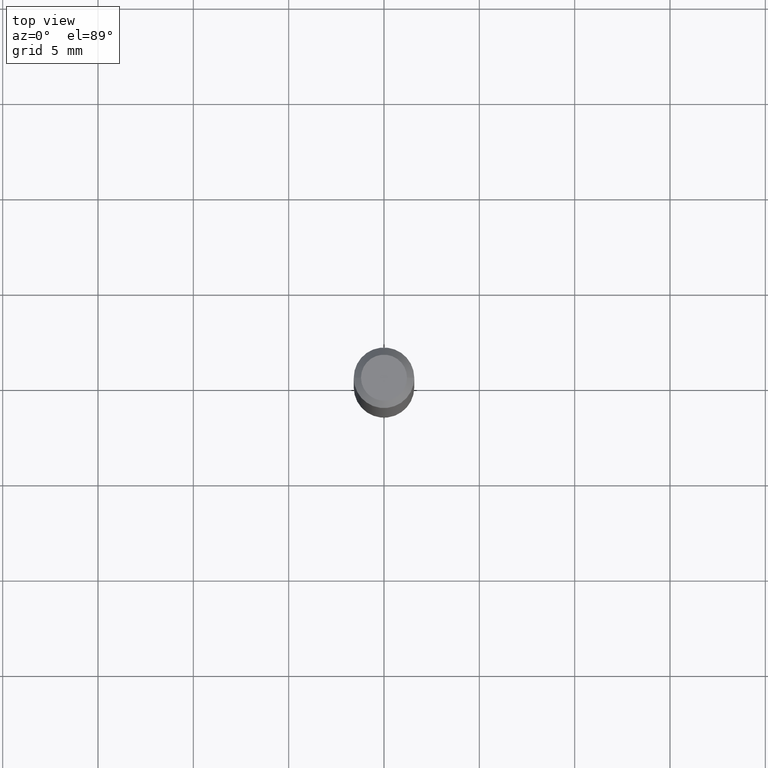
[diagram: clean part render]
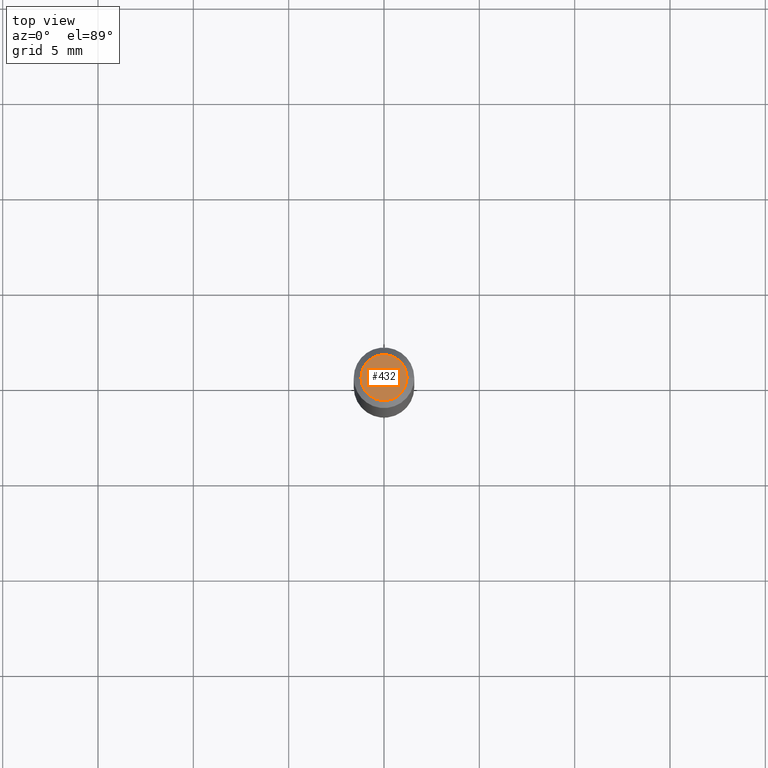
[diagram: same view with one face highlighted and labeled with its STEP entity id]
A machine part, top view. The second image highlights one B-rep face of the part: STEP entity #432.
In plain terms, the highlighted planar face has unit normal (0, -0, -1).
Its self-contained STEP definition (entity closure, byte-faithful):
#4 = DIRECTION ( 'NONE',  ( 1.000000000000000000, -6.982962677686266711E-15, 4.852736867747365086E-29 ) ) ;
#6 = DIRECTION ( 'NONE',  ( -2.445468806185136597E-29, 3.491481338843145583E-15, 1.000000000000000000 ) ) ;
#30 = VERTEX_POINT ( 'NONE', #50 ) ;
#50 = CARTESIAN_POINT ( 'NONE',  ( -0.04750000000000000749, 3.578768372314221353E-16, 2.731847993664239060E-16 ) ) ;
#53 = DIRECTION ( 'NONE',  ( 1.000000000000000000, -6.982962677686266711E-15, 4.852736867747365086E-29 ) ) ;
#93 = ORIENTED_EDGE ( 'NONE', *, *, #323, .T. ) ;
#121 = CIRCLE ( 'NONE', #275, 0.04750000000000000749 ) ;
#130 = AXIS2_PLACEMENT_3D ( 'NONE', #240, #211, #4 ) ;
#165 = DIRECTION ( 'NONE',  ( 2.438088387897960049E-29, -3.491481338843145188E-15, -1.000000000000000000 ) ) ;
#205 = PLANE ( 'NONE',  #330 ) ;
#211 = DIRECTION ( 'NONE',  ( -2.445468806185136597E-29, 3.491481338843145583E-15, 1.000000000000000000 ) ) ;
#240 = CARTESIAN_POINT ( 'NONE',  ( -6.680649051745406845E-45, 9.538196290434862081E-31, 2.731847993664263218E-16 ) ) ;
#247 = CIRCLE ( 'NONE', #130, 0.04750000000000000749 ) ;
#275 = AXIS2_PLACEMENT_3D ( 'NONE', #491, #6, #53 ) ;
#281 = CARTESIAN_POINT ( 'NONE',  ( 0.04750000000000000749, -4.035134999187568762E-16, 2.731847993664288856E-16 ) ) ;
#311 = EDGE_LOOP ( 'NONE', ( #416, #93 ) ) ;
#323 = EDGE_CURVE ( 'NONE', #333, #30, #121, .T. ) ;
#330 = AXIS2_PLACEMENT_3D ( 'NONE', #357, #165, #449 ) ;
#333 = VERTEX_POINT ( 'NONE', #281 ) ;
#349 = EDGE_CURVE ( 'NONE', #30, #333, #247, .T. ) ;
#357 = CARTESIAN_POINT ( 'NONE',  ( 3.316907271900976589E-16, 0.04750000000000000749, -2.925296391183627249E-17 ) ) ;
#394 = FACE_OUTER_BOUND ( 'NONE', #311, .T. ) ;
#416 = ORIENTED_EDGE ( 'NONE', *, *, #349, .T. ) ;
#432 = ADVANCED_FACE ( 'NONE', ( #394 ), #205, .F. ) ;
#449 = DIRECTION ( 'NONE',  ( -1.000000000000000000, 6.982962677686265922E-15, -4.876176775795935793E-29 ) ) ;
#491 = CARTESIAN_POINT ( 'NONE',  ( -6.680649051745406845E-45, 9.538196290434862081E-31, 2.731847993664263218E-16 ) ) ;